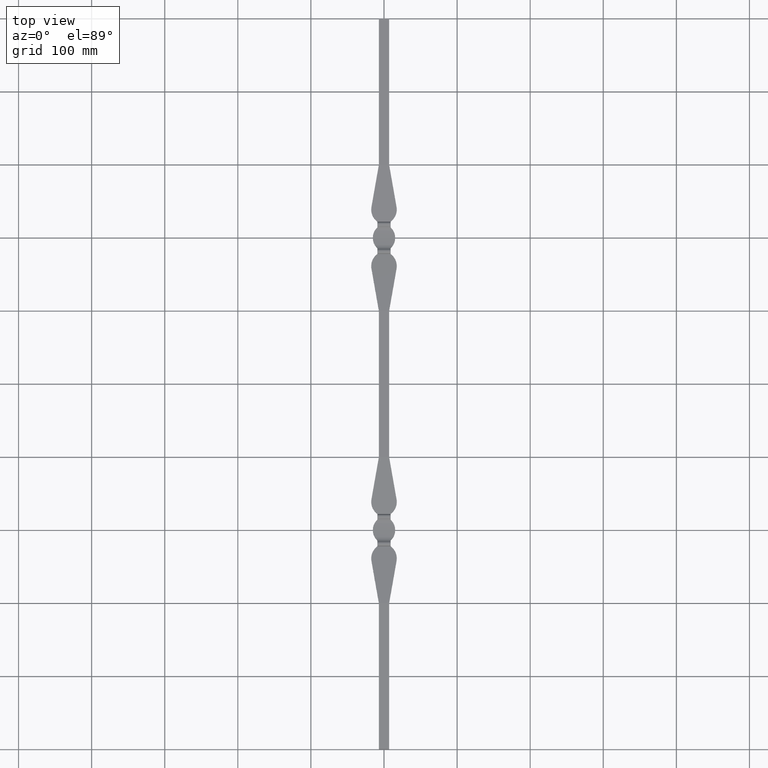
[diagram: clean part render]
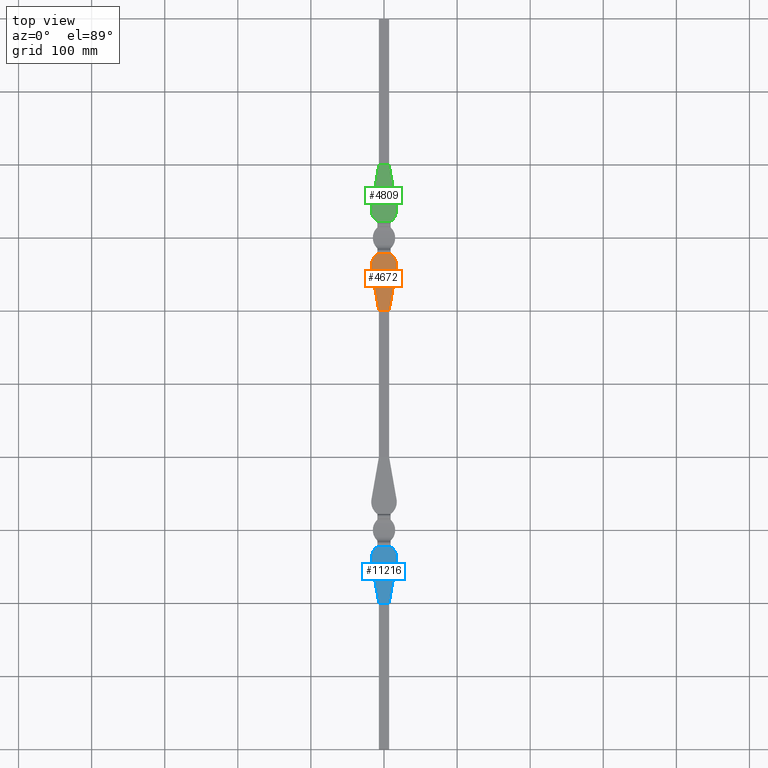
[diagram: same view with three faces highlighted in distinct colors, each labeled with its STEP entity id]
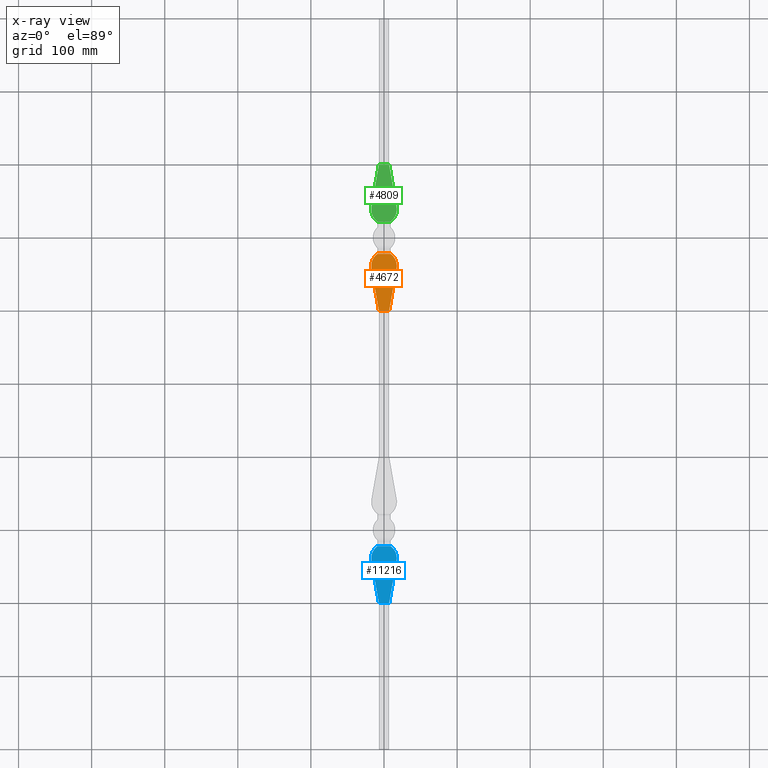
[diagram: x-ray of the same camera — body ghosted, the three highlighted faces saturated]
A machine part, top view with three faces highlighted in distinct colors.
The next image is the same camera in x-ray (body ghosted, the three faces saturated) — at least one of them is partly hidden behind the body in this view.
Their STEP definitions:

[orange] entity #4672 — the highlighted planar face has unit normal (0, -0.0608, -0.9982).
#103 = DIRECTION ( 'NONE',  ( 0.000000000000000000, -0.06078482999941201004, -0.9981508926219234690 ) ) ;
#388 = CARTESIAN_POINT ( 'NONE',  ( 17.19423237648115332, -42.00000000000000000, 3.467948717948717618 ) ) ;
#586 = CARTESIAN_POINT ( 'NONE',  ( 9.000000000000000000, -22.00000000000000000, 2.249999999999999556 ) ) ;
#709 = VERTEX_POINT ( 'NONE', #388 ) ;
#807 = ORIENTED_EDGE ( 'NONE', *, *, #5348, .F. ) ;
#1114 = VECTOR ( 'NONE', #12145, 1000.000000000000114 ) ;
#1185 = CARTESIAN_POINT ( 'NONE',  ( 9.000000000000000000, -22.00000000000000000, 2.249999999999999556 ) ) ;
#1366 = EDGE_LOOP ( 'NONE', ( #5809, #7109, #4907, #807, #8879, #13525 ) ) ;
#1443 = DIRECTION ( 'NONE',  ( -1.000000000000000000, 0.000000000000000000, 0.000000000000000000 ) ) ;
#1488 = CARTESIAN_POINT ( 'NONE',  ( 0.000000000000000000, -100.0000000000000000, 7.000000000000000000 ) ) ;
#2995 = CARTESIAN_POINT ( 'NONE',  ( -9.000000000000000000, -22.00000000000000000, 2.250000000000000444 ) ) ;
#3226 = CARTESIAN_POINT ( 'NONE',  ( -7.000000000000000888, -99.99999999999997158, 7.000000000000000000 ) ) ;
#3460 = LINE ( 'NONE', #4620, #1114 ) ;
#3573 = LINE ( 'NONE', #1488, #10121 ) ;
#4126 = VERTEX_POINT ( 'NONE', #2995 ) ;
#4462 = VERTEX_POINT ( 'NONE', #7511 ) ;
#4620 = CARTESIAN_POINT ( 'NONE',  ( 7.000000000000000888, -100.0000000000000000, 7.000000000000000000 ) ) ;
#4672 = ADVANCED_FACE ( 'NONE', ( #13033 ), #11552, .F. ) ;
#4907 = ORIENTED_EDGE ( 'NONE', *, *, #6974, .F. ) ;
#4966 = CARTESIAN_POINT ( 'NONE',  ( 18.58435472468469740, -34.09091050525607614, 2.986305447435465776 ) ) ;
#5019 = CARTESIAN_POINT ( 'NONE',  ( -17.19423237648115332, -42.00000000000000000, 3.467948717948717618 ) ) ;
#5348 = EDGE_CURVE ( 'NONE', #709, #12831, #3460, .T. ) ;
#5356 = AXIS2_PLACEMENT_3D ( 'NONE', #10919, #103, #6620 ) ;
#5809 = ORIENTED_EDGE ( 'NONE', *, *, #13664, .T. ) ;
#6030 =( BOUNDED_CURVE ( )  B_SPLINE_CURVE ( 3, ( #586, #11305, #4966, #9257 ),
 .UNSPECIFIED., .F., .T. ) 
 B_SPLINE_CURVE_WITH_KNOTS ( ( 4, 4 ),
 ( 0.6191101395289017040, 1.744781863033761926 ),
 .UNSPECIFIED. ) 
 CURVE ( )  GEOMETRIC_REPRESENTATION_ITEM ( )  RATIONAL_B_SPLINE_CURVE ( ( 1.000000000000000000, 0.8971635570349776323, 0.8971635570349776323, 1.000000000000000000 ) ) 
 REPRESENTATION_ITEM ( '' )  );
#6059 = DIRECTION ( 'NONE',  ( 1.000000000000000000, 0.000000000000000000, 0.000000000000000000 ) ) ;
#6153 = CARTESIAN_POINT ( 'NONE',  ( -17.50000000000000355, -22.00000000000000000, 2.250000000000000000 ) ) ;
#6543 = LINE ( 'NONE', #12689, #7708 ) ;
#6620 = DIRECTION ( 'NONE',  ( 0.000000000000000000, -0.9981508926219234690, 0.06078482999941201004 ) ) ;
#6974 = EDGE_CURVE ( 'NONE', #12831, #8828, #3573, .T. ) ;
#7033 = CARTESIAN_POINT ( 'NONE',  ( 7.000000000000000888, -100.0000000000000284, 7.000000000000000000 ) ) ;
#7109 = ORIENTED_EDGE ( 'NONE', *, *, #13539, .T. ) ;
#7511 = CARTESIAN_POINT ( 'NONE',  ( -17.19423237648115332, -42.00000000000000000, 3.467948717948717618 ) ) ;
#7708 = VECTOR ( 'NONE', #12736, 1000.000000000000114 ) ;
#8828 = VERTEX_POINT ( 'NONE', #3226 ) ;
#8879 = ORIENTED_EDGE ( 'NONE', *, *, #13761, .F. ) ;
#9142 =( BOUNDED_CURVE ( )  B_SPLINE_CURVE ( 3, ( #11256, #12539, #11407, #5019 ),
 .UNSPECIFIED., .F., .F. ) 
 B_SPLINE_CURVE_WITH_KNOTS ( ( 4, 4 ),
 ( 0.6191101395289017040, 1.744781863033761926 ),
 .UNSPECIFIED. ) 
 CURVE ( )  GEOMETRIC_REPRESENTATION_ITEM ( )  RATIONAL_B_SPLINE_CURVE ( ( 1.000000000000000000, 0.8971635570349776323, 0.8971635570349776323, 1.000000000000000000 ) ) 
 REPRESENTATION_ITEM ( '' )  );
#9257 = CARTESIAN_POINT ( 'NONE',  ( 17.19423237648115332, -42.00000000000000000, 3.467948717948717618 ) ) ;
#9499 = EDGE_CURVE ( 'NONE', #4126, #13642, #11398, .T. ) ;
#10121 = VECTOR ( 'NONE', #1443, 1000.000000000000000 ) ;
#10919 = CARTESIAN_POINT ( 'NONE',  ( -17.50000000000000355, -100.0000000000000000, 7.000000000000000000 ) ) ;
#11256 = CARTESIAN_POINT ( 'NONE',  ( -9.000000000000000000, -22.00000000000000000, 2.250000000000000444 ) ) ;
#11305 = CARTESIAN_POINT ( 'NONE',  ( 15.53985880112379725, -26.66008408080875469, 2.533787171587711384 ) ) ;
#11398 = LINE ( 'NONE', #6153, #13224 ) ;
#11407 = CARTESIAN_POINT ( 'NONE',  ( -18.58435472468469740, -34.09091050525607614, 2.986305447435465776 ) ) ;
#11552 = PLANE ( 'NONE',  #5356 ) ;
#12145 = DIRECTION ( 'NONE',  ( -0.1727985479923806467, -0.9831358962034556503, 0.05987045521751813842 ) ) ;
#12539 = CARTESIAN_POINT ( 'NONE',  ( -15.53985880112379725, -26.66008408080875469, 2.533787171587711384 ) ) ;
#12689 = CARTESIAN_POINT ( 'NONE',  ( -7.000000000000000888, -100.0000000000000000, 7.000000000000000000 ) ) ;
#12736 = DIRECTION ( 'NONE',  ( 0.1727985479923806467, -0.9831358962034556503, 0.05987045521751813842 ) ) ;
#12831 = VERTEX_POINT ( 'NONE', #7033 ) ;
#13033 = FACE_OUTER_BOUND ( 'NONE', #1366, .T. ) ;
#13224 = VECTOR ( 'NONE', #6059, 1000.000000000000000 ) ;
#13525 = ORIENTED_EDGE ( 'NONE', *, *, #9499, .F. ) ;
#13539 = EDGE_CURVE ( 'NONE', #4462, #8828, #6543, .T. ) ;
#13642 = VERTEX_POINT ( 'NONE', #1185 ) ;
#13664 = EDGE_CURVE ( 'NONE', #4126, #4462, #9142, .T. ) ;
#13761 = EDGE_CURVE ( 'NONE', #13642, #709, #6030, .T. ) ;

[blue] entity #11216 — the highlighted planar face has unit normal (0, -0.0608, -0.9982).
#19 = ORIENTED_EDGE ( 'NONE', *, *, #3673, .T. ) ;
#124 = ORIENTED_EDGE ( 'NONE', *, *, #4080, .F. ) ;
#424 = VERTEX_POINT ( 'NONE', #2799 ) ;
#499 = PLANE ( 'NONE',  #5857 ) ;
#592 = VERTEX_POINT ( 'NONE', #8815 ) ;
#742 = LINE ( 'NONE', #10663, #8954 ) ;
#1469 = CARTESIAN_POINT ( 'NONE',  ( 17.19423237648115332, -442.0000000000000000, 3.467948717948717618 ) ) ;
#1493 =( BOUNDED_CURVE ( )  B_SPLINE_CURVE ( 3, ( #2435, #2480, #4579, #1469 ),
 .UNSPECIFIED., .F., .T. ) 
 B_SPLINE_CURVE_WITH_KNOTS ( ( 4, 4 ),
 ( 0.6191101395289030362, 1.744781863033762370 ),
 .UNSPECIFIED. ) 
 CURVE ( )  GEOMETRIC_REPRESENTATION_ITEM ( )  RATIONAL_B_SPLINE_CURVE ( ( 1.000000000000000000, 0.8971635570349777433, 0.8971635570349777433, 1.000000000000000000 ) ) 
 REPRESENTATION_ITEM ( '' )  );
#1539 = CARTESIAN_POINT ( 'NONE',  ( -8.999999999999998224, -422.0000000000000568, 2.250000000000000000 ) ) ;
#1632 = DIRECTION ( 'NONE',  ( 0.000000000000000000, -0.06078482999941201004, -0.9981508926219234690 ) ) ;
#1731 = VECTOR ( 'NONE', #11129, 1000.000000000000000 ) ;
#1781 = ORIENTED_EDGE ( 'NONE', *, *, #13052, .T. ) ;
#1840 = VERTEX_POINT ( 'NONE', #7797 ) ;
#2435 = CARTESIAN_POINT ( 'NONE',  ( 8.999999999999998224, -422.0000000000000568, 2.250000000000000000 ) ) ;
#2480 = CARTESIAN_POINT ( 'NONE',  ( 15.53985880112381146, -426.6600840808087582, 2.533787171587713161 ) ) ;
#2501 = DIRECTION ( 'NONE',  ( 0.000000000000000000, -0.9981508926219234690, 0.06078482999941201004 ) ) ;
#2799 = CARTESIAN_POINT ( 'NONE',  ( 17.19423237648115332, -442.0000000000000000, 3.467948717948717618 ) ) ;
#2887 = VERTEX_POINT ( 'NONE', #6753 ) ;
#3673 = EDGE_CURVE ( 'NONE', #2887, #1840, #11373, .T. ) ;
#4080 = EDGE_CURVE ( 'NONE', #424, #13014, #7838, .T. ) ;
#4579 = CARTESIAN_POINT ( 'NONE',  ( 18.58435472468469740, -434.0909105052561472, 2.986305447435467553 ) ) ;
#4994 =( BOUNDED_CURVE ( )  B_SPLINE_CURVE ( 3, ( #1539, #11266, #5773, #6919 ),
 .UNSPECIFIED., .F., .T. ) 
 B_SPLINE_CURVE_WITH_KNOTS ( ( 4, 4 ),
 ( 0.6191101395289030362, 1.744781863033762370 ),
 .UNSPECIFIED. ) 
 CURVE ( )  GEOMETRIC_REPRESENTATION_ITEM ( )  RATIONAL_B_SPLINE_CURVE ( ( 1.000000000000000000, 0.8971635570349777433, 0.8971635570349777433, 1.000000000000000000 ) ) 
 REPRESENTATION_ITEM ( '' )  );
#5725 = CARTESIAN_POINT ( 'NONE',  ( -17.50000000000000355, -422.0000000000000568, 2.250000000000000000 ) ) ;
#5773 = CARTESIAN_POINT ( 'NONE',  ( -18.58435472468469740, -434.0909105052561472, 2.986305447435467553 ) ) ;
#5857 = AXIS2_PLACEMENT_3D ( 'NONE', #5868, #1632, #2501 ) ;
#5868 = CARTESIAN_POINT ( 'NONE',  ( -17.50000000000000355, -500.0000000000000000, 7.000000000000000000 ) ) ;
#6211 = EDGE_CURVE ( 'NONE', #592, #424, #1493, .T. ) ;
#6282 = ORIENTED_EDGE ( 'NONE', *, *, #7957, .F. ) ;
#6345 = VECTOR ( 'NONE', #7069, 1000.000000000000114 ) ;
#6411 = DIRECTION ( 'NONE',  ( 1.000000000000000000, 0.000000000000000000, 0.000000000000000000 ) ) ;
#6737 = LINE ( 'NONE', #5725, #1731 ) ;
#6753 = CARTESIAN_POINT ( 'NONE',  ( -17.19423237648115332, -442.0000000000000000, 3.467948717948717618 ) ) ;
#6919 = CARTESIAN_POINT ( 'NONE',  ( -17.19423237648115332, -442.0000000000000000, 3.467948717948717618 ) ) ;
#7069 = DIRECTION ( 'NONE',  ( 0.1727985479923806467, -0.9831358962034556503, 0.05987045521751813842 ) ) ;
#7633 = ORIENTED_EDGE ( 'NONE', *, *, #11208, .T. ) ;
#7797 = CARTESIAN_POINT ( 'NONE',  ( -7.000000000000000888, -500.0000000000000000, 7.000000000000000000 ) ) ;
#7838 = LINE ( 'NONE', #13524, #9536 ) ;
#7957 = EDGE_CURVE ( 'NONE', #8504, #592, #6737, .T. ) ;
#8504 = VERTEX_POINT ( 'NONE', #11108 ) ;
#8815 = CARTESIAN_POINT ( 'NONE',  ( 8.999999999999998224, -422.0000000000000568, 2.250000000000000000 ) ) ;
#8954 = VECTOR ( 'NONE', #6411, 1000.000000000000000 ) ;
#9163 = EDGE_LOOP ( 'NONE', ( #7633, #19, #1781, #124, #11614, #6282 ) ) ;
#9536 = VECTOR ( 'NONE', #13619, 1000.000000000000114 ) ;
#10111 = CARTESIAN_POINT ( 'NONE',  ( -7.000000000000000888, -500.0000000000000000, 7.000000000000000000 ) ) ;
#10383 = FACE_OUTER_BOUND ( 'NONE', #9163, .T. ) ;
#10663 = CARTESIAN_POINT ( 'NONE',  ( -7.000000000000000888, -500.0000000000000000, 7.000000000000000000 ) ) ;
#11108 = CARTESIAN_POINT ( 'NONE',  ( -8.999999999999998224, -422.0000000000000568, 2.250000000000000000 ) ) ;
#11129 = DIRECTION ( 'NONE',  ( 1.000000000000000000, 0.000000000000000000, 0.000000000000000000 ) ) ;
#11208 = EDGE_CURVE ( 'NONE', #8504, #2887, #4994, .T. ) ;
#11216 = ADVANCED_FACE ( 'NONE', ( #10383 ), #499, .F. ) ;
#11266 = CARTESIAN_POINT ( 'NONE',  ( -15.53985880112381146, -426.6600840808087582, 2.533787171587713161 ) ) ;
#11373 = LINE ( 'NONE', #10111, #6345 ) ;
#11614 = ORIENTED_EDGE ( 'NONE', *, *, #6211, .F. ) ;
#12870 = CARTESIAN_POINT ( 'NONE',  ( 7.000000000000000888, -500.0000000000000000, 7.000000000000000000 ) ) ;
#13014 = VERTEX_POINT ( 'NONE', #12870 ) ;
#13052 = EDGE_CURVE ( 'NONE', #1840, #13014, #742, .T. ) ;
#13524 = CARTESIAN_POINT ( 'NONE',  ( 7.000000000000000888, -500.0000000000000000, 7.000000000000000000 ) ) ;
#13619 = DIRECTION ( 'NONE',  ( -0.1727985479923806467, -0.9831358962034556503, 0.05987045521751813842 ) ) ;

[green] entity #4809 — the highlighted planar face has unit normal (0, 0.0608, -0.9982).
#227 = CARTESIAN_POINT ( 'NONE',  ( -15.53985880112379725, 26.66008408080875469, 2.533787171587711384 ) ) ;
#665 = VECTOR ( 'NONE', #10906, 1000.000000000000114 ) ;
#878 = EDGE_CURVE ( 'NONE', #12725, #7777, #4024, .T. ) ;
#892 = EDGE_CURVE ( 'NONE', #12725, #13812, #9565, .T. ) ;
#1214 = VECTOR ( 'NONE', #10396, 1000.000000000000000 ) ;
#1610 = CARTESIAN_POINT ( 'NONE',  ( 15.53985880112379725, 26.66008408080875469, 2.533787171587711384 ) ) ;
#2173 = ORIENTED_EDGE ( 'NONE', *, *, #10453, .T. ) ;
#2318 = ORIENTED_EDGE ( 'NONE', *, *, #7581, .F. ) ;
#2454 = VECTOR ( 'NONE', #11055, 1000.000000000000114 ) ;
#2463 = CARTESIAN_POINT ( 'NONE',  ( -17.50000000000000355, 22.00000000000000000, 2.250000000000000000 ) ) ;
#2517 = CARTESIAN_POINT ( 'NONE',  ( -8.999999999999998224, 22.00000000000000000, 2.250000000000000000 ) ) ;
#2808 = CARTESIAN_POINT ( 'NONE',  ( 8.999999999999998224, 22.00000000000000000, 2.250000000000000000 ) ) ;
#3407 = CARTESIAN_POINT ( 'NONE',  ( -7.000000000000000888, 100.0000000000000000, 7.000000000000000000 ) ) ;
#3454 = DIRECTION ( 'NONE',  ( 1.000000000000000000, -0.000000000000000000, -0.000000000000000000 ) ) ;
#3847 = EDGE_CURVE ( 'NONE', #13225, #12995, #12062, .T. ) ;
#4024 = LINE ( 'NONE', #2463, #4184 ) ;
#4184 = VECTOR ( 'NONE', #3454, 1000.000000000000000 ) ;
#4615 = CARTESIAN_POINT ( 'NONE',  ( -8.999999999999998224, 22.00000000000000000, 2.250000000000000000 ) ) ;
#4630 = EDGE_LOOP ( 'NONE', ( #7975, #13833, #2173, #4888, #2318, #5634 ) ) ;
#4809 = ADVANCED_FACE ( 'NONE', ( #11870 ), #9571, .F. ) ;
#4888 = ORIENTED_EDGE ( 'NONE', *, *, #3847, .T. ) ;
#5329 = EDGE_CURVE ( 'NONE', #13812, #8917, #12025, .T. ) ;
#5634 = ORIENTED_EDGE ( 'NONE', *, *, #5329, .F. ) ;
#6185 = AXIS2_PLACEMENT_3D ( 'NONE', #10728, #10857, #8802 ) ;
#7234 = CARTESIAN_POINT ( 'NONE',  ( -17.19423237648115332, 42.00000000000000000, 3.467948717948717618 ) ) ;
#7303 = CARTESIAN_POINT ( 'NONE',  ( 7.000000000000000888, 100.0000000000000000, 7.000000000000000000 ) ) ;
#7581 = EDGE_CURVE ( 'NONE', #8917, #12995, #12638, .T. ) ;
#7777 = VERTEX_POINT ( 'NONE', #10863 ) ;
#7856 = CARTESIAN_POINT ( 'NONE',  ( -18.58435472468469740, 34.09091050525607614, 2.986305447435465776 ) ) ;
#7975 = ORIENTED_EDGE ( 'NONE', *, *, #892, .F. ) ;
#8787 = CARTESIAN_POINT ( 'NONE',  ( 17.19423237648115332, 42.00000000000000000, 3.467948717948717618 ) ) ;
#8802 = DIRECTION ( 'NONE',  ( 0.000000000000000000, 0.9981508926219234690, 0.06078482999941201004 ) ) ;
#8917 = VERTEX_POINT ( 'NONE', #3407 ) ;
#9565 =( BOUNDED_CURVE ( )  B_SPLINE_CURVE ( 3, ( #4615, #227, #7856, #12184 ),
 .UNSPECIFIED., .F., .T. ) 
 B_SPLINE_CURVE_WITH_KNOTS ( ( 4, 4 ),
 ( 0.6191101395289017040, 1.744781863033761926 ),
 .UNSPECIFIED. ) 
 CURVE ( )  GEOMETRIC_REPRESENTATION_ITEM ( )  RATIONAL_B_SPLINE_CURVE ( ( 1.000000000000000000, 0.8971635570349776323, 0.8971635570349776323, 1.000000000000000000 ) ) 
 REPRESENTATION_ITEM ( '' )  );
#9571 = PLANE ( 'NONE',  #6185 ) ;
#10322 = CARTESIAN_POINT ( 'NONE',  ( 18.58435472468469740, 34.09091050525607614, 2.986305447435465776 ) ) ;
#10396 = DIRECTION ( 'NONE',  ( 1.000000000000000000, 0.000000000000000000, 0.000000000000000000 ) ) ;
#10453 = EDGE_CURVE ( 'NONE', #7777, #13225, #12907, .T. ) ;
#10487 = CARTESIAN_POINT ( 'NONE',  ( -7.000000000000000888, 100.0000000000000000, 7.000000000000000000 ) ) ;
#10728 = CARTESIAN_POINT ( 'NONE',  ( -17.50000000000000355, 100.0000000000000000, 7.000000000000000000 ) ) ;
#10821 = CARTESIAN_POINT ( 'NONE',  ( 7.000000000000000888, 100.0000000000000000, 7.000000000000000000 ) ) ;
#10857 = DIRECTION ( 'NONE',  ( 0.000000000000000000, 0.06078482999941201004, -0.9981508926219234690 ) ) ;
#10863 = CARTESIAN_POINT ( 'NONE',  ( 8.999999999999998224, 22.00000000000000000, 2.250000000000000000 ) ) ;
#10906 = DIRECTION ( 'NONE',  ( -0.1727985479923806467, 0.9831358962034556503, 0.05987045521751813842 ) ) ;
#11055 = DIRECTION ( 'NONE',  ( 0.1727985479923806467, 0.9831358962034556503, 0.05987045521751813842 ) ) ;
#11870 = FACE_OUTER_BOUND ( 'NONE', #4630, .T. ) ;
#12025 = LINE ( 'NONE', #12042, #2454 ) ;
#12042 = CARTESIAN_POINT ( 'NONE',  ( -7.000000000000000888, 100.0000000000000000, 7.000000000000000000 ) ) ;
#12062 = LINE ( 'NONE', #10821, #665 ) ;
#12184 = CARTESIAN_POINT ( 'NONE',  ( -17.19423237648115332, 42.00000000000000000, 3.467948717948717618 ) ) ;
#12638 = LINE ( 'NONE', #10487, #1214 ) ;
#12725 = VERTEX_POINT ( 'NONE', #2517 ) ;
#12907 =( BOUNDED_CURVE ( )  B_SPLINE_CURVE ( 3, ( #2808, #1610, #10322, #13352 ),
 .UNSPECIFIED., .F., .F. ) 
 B_SPLINE_CURVE_WITH_KNOTS ( ( 4, 4 ),
 ( 0.6191101395289017040, 1.744781863033761926 ),
 .UNSPECIFIED. ) 
 CURVE ( )  GEOMETRIC_REPRESENTATION_ITEM ( )  RATIONAL_B_SPLINE_CURVE ( ( 1.000000000000000000, 0.8971635570349776323, 0.8971635570349776323, 1.000000000000000000 ) ) 
 REPRESENTATION_ITEM ( '' )  );
#12995 = VERTEX_POINT ( 'NONE', #7303 ) ;
#13225 = VERTEX_POINT ( 'NONE', #8787 ) ;
#13352 = CARTESIAN_POINT ( 'NONE',  ( 17.19423237648115332, 42.00000000000000000, 3.467948717948717618 ) ) ;
#13812 = VERTEX_POINT ( 'NONE', #7234 ) ;
#13833 = ORIENTED_EDGE ( 'NONE', *, *, #878, .T. ) ;